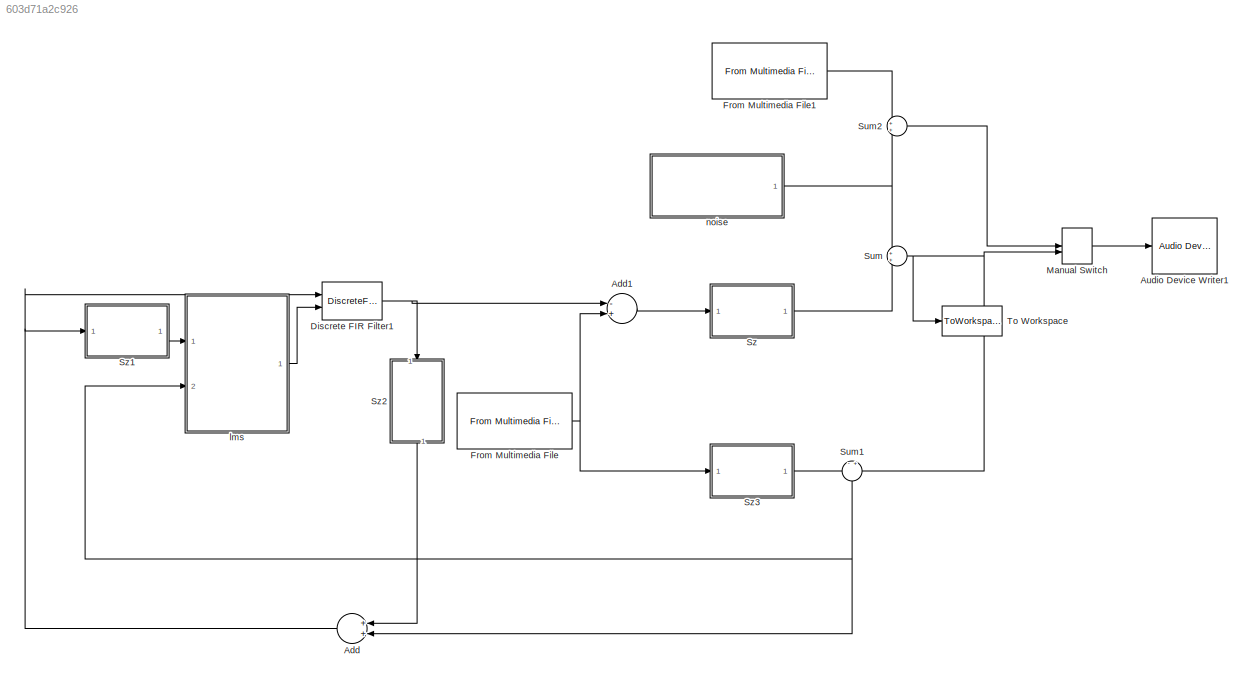
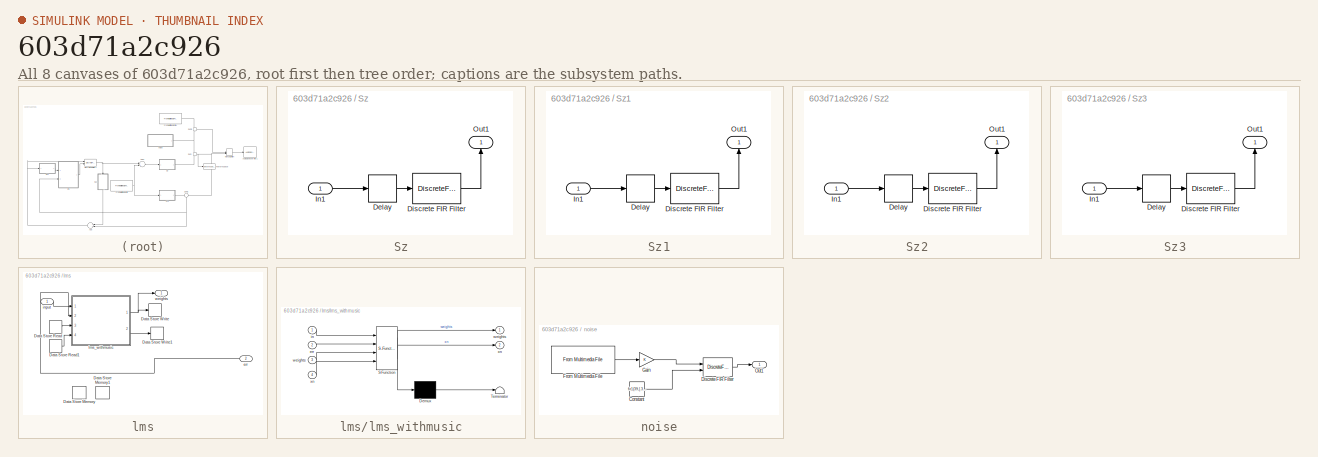
[diagram: thumbnail index - all 8 canvases of the model, root first then tree order]
MODEL slx_603d71a2c926
KIND model
CONFIG AbsTol = auto
CONFIG EnableMultiTasking = off
CONFIG FixedStep = auto
CONFIG MaxStep = auto
CONFIG MinStep = auto
CONFIG RelTol = 1e-3
CONFIG SampleTimeConstraint = Unconstrained
CONFIG Solver = VariableStepAuto
CONFIG SolverName = VariableStepAuto
CONFIG StartTime = 0.0
CONFIG StopTime = inf
BLOCK [Sum] Add
  InputSameDT = off
  OutDataTypeStr = Inherit: Inherit via internal rule
  Ports = [2, 1]
  SaturateOnIntegerOverflow = off
BLOCK [Sum] Add1
  InputSameDT = off
  Inputs = -+
  OutDataTypeStr = Inherit: Inherit via internal rule
  Ports = [2, 1]
  SaturateOnIntegerOverflow = off
BLOCK [Reference] Audio Device Writer1  REF=dspsnks4/Audio Device
Writer
  Ports = [1]
  SourceBlock = dspsnks4/Audio Device\nWriter
  SourceType = Audio Device Writer
BLOCK [DiscreteFir] Discrete FIR Filter1
  CoefSource = Input port
  Coefficients = [0.5 0.5 0.3 0.3]
  InputPortMap = u0,u1
  OutputPortMap = o0
  Ports = [2, 1]
BLOCK [Reference] From Multimedia File  REF=dspvision/From Multimedia File
  Ports = [0, 1]
  SourceBlock = dspvision/From Multimedia File
  SourceType = From Multimedia File
BLOCK [Reference] From Multimedia File1  REF=dspvision/From Multimedia File
  Ports = [0, 1]
  SourceBlock = dspvision/From Multimedia File
  SourceType = From Multimedia File
BLOCK [ManualSwitch] Manual Switch
BLOCK [Sum] Sum
  IconShape = round
  InputSameDT = off
  OutDataTypeStr = Inherit: Inherit via internal rule
  Ports = [2, 1]
  SaturateOnIntegerOverflow = off
BLOCK [Sum] Sum1
  IconShape = round
  InputSameDT = off
  Inputs = -+
  OutDataTypeStr = Inherit: Inherit via internal rule
  Ports = [2, 1]
  SaturateOnIntegerOverflow = off
BLOCK [Sum] Sum2
  IconShape = round
  InputSameDT = off
  OutDataTypeStr = Inherit: Inherit via internal rule
  Ports = [2, 1]
  SaturateOnIntegerOverflow = off
BLOCK [SubSystem] Sz
  Ports = [1, 1]
  RequestExecContextInheritance = off
  Variant = off
BLOCK [Delay] Sz/Delay
  DelayLength = 1
  InitialCondition = 0
  InputPortMap = u0
  Ports = [1, 1]
BLOCK [DiscreteFir] Sz/Discrete FIR Filter
  Coefficients = [0.5 0.5 0.3 0.3]
  InputPortMap = u0
  OutputPortMap = o0
  Ports = [1, 1]
BLOCK [Inport] Sz/In1
  IconDisplay = Port number
BLOCK [Outport] Sz/Out1
  IconDisplay = Port number
BLOCK [SubSystem] Sz1
  Ports = [1, 1]
  RequestExecContextInheritance = off
  Variant = off
BLOCK [Delay] Sz1/Delay
  DelayLength = 1
  InitialCondition = 0
  InputPortMap = u0
  Ports = [1, 1]
BLOCK [DiscreteFir] Sz1/Discrete FIR Filter
  Coefficients = [0.5 0.5 0.3 0.3]
  InputPortMap = u0
  OutputPortMap = o0
  Ports = [1, 1]
BLOCK [Inport] Sz1/In1
  IconDisplay = Port number
BLOCK [Outport] Sz1/Out1
  IconDisplay = Port number
BLOCK [SubSystem] Sz2
  Ports = [1, 1]
  RequestExecContextInheritance = off
  Variant = off
BLOCK [Delay] Sz2/Delay
  DelayLength = 1
  InitialCondition = 0
  InputPortMap = u0
  Ports = [1, 1]
BLOCK [DiscreteFir] Sz2/Discrete FIR Filter
  Coefficients = [0.5 0.5 0.3 0.3]
  InputPortMap = u0
  OutputPortMap = o0
  Ports = [1, 1]
BLOCK [Inport] Sz2/In1
  IconDisplay = Port number
BLOCK [Outport] Sz2/Out1
  IconDisplay = Port number
BLOCK [SubSystem] Sz3
  Ports = [1, 1]
  RequestExecContextInheritance = off
  Variant = off
BLOCK [Delay] Sz3/Delay
  DelayLength = 1
  InitialCondition = 0
  InputPortMap = u0
  Ports = [1, 1]
BLOCK [DiscreteFir] Sz3/Discrete FIR Filter
  Coefficients = [0.5 0.5 0.3 0.3]
  InputPortMap = u0
  OutputPortMap = o0
  Ports = [1, 1]
BLOCK [Inport] Sz3/In1
  IconDisplay = Port number
BLOCK [Outport] Sz3/Out1
  IconDisplay = Port number
BLOCK [ToWorkspace] To Workspace
  FixptAsFi = on
  MaxDataPoints = inf
  Ports = [1]
  SampleTime = -1
  Save2DSignal = 3-D array (concatenate along third dimension)
  SaveFormat = Timeseries
  VariableName = simout
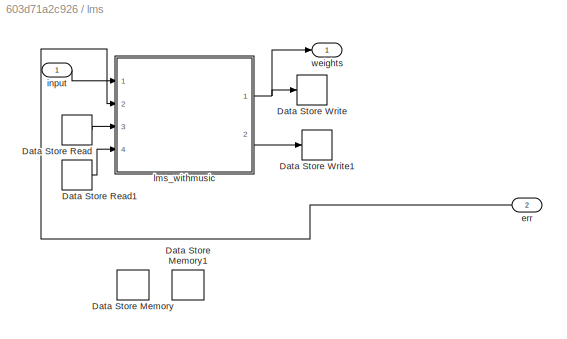
BLOCK [SubSystem] lms
  Ports = [2, 1]
  RequestExecContextInheritance = off
  Variant = off
BLOCK [DataStoreMemory] lms/Data Store Memory
  DataStoreName = weights
  Dimensions = 256
  ReadBeforeWriteMsg = warning
  ShowAdditionalParam = off
  WriteAfterReadMsg = warning
  WriteAfterWriteMsg = warning
BLOCK [DataStoreMemory] lms/Data Store Memory1
  DataStoreName = xn
  Dimensions = 256
  ReadBeforeWriteMsg = warning
  ShowAdditionalParam = off
  WriteAfterReadMsg = warning
  WriteAfterWriteMsg = warning
BLOCK [DataStoreRead] lms/Data Store Read
  DataStoreName = weights
  Ports = [0, 1]
BLOCK [DataStoreRead] lms/Data Store Read1
  DataStoreName = xn
  Ports = [0, 1]
BLOCK [DataStoreWrite] lms/Data Store Write
  DataStoreName = weights
  Ports = [1]
BLOCK [DataStoreWrite] lms/Data Store Write1
  DataStoreName = xn
  Ports = [1]
BLOCK [Inport] lms/err
  IconDisplay = Port number
  Port = 2
BLOCK [Inport] lms/input 
  IconDisplay = Port number
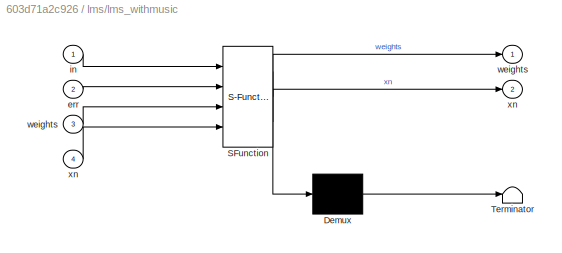
BLOCK [SubSystem] lms/lms_withmusic
  ErrorFcn = Stateflow.Translate.translate
  PermitHierarchicalResolution = ExplicitOnly
  Ports = [4, 2]
  RequestExecContextInheritance = off
  SFBlockType = MATLAB Function
  TreatAsAtomicUnit = on
  Variant = off
BLOCK [Demux] lms/lms_withmusic/ Demux 
  Outputs = 1
  Ports = [1, 1]
BLOCK [S-Function] lms/lms_withmusic/ SFunction 
  EnableBusSupport = on
  FunctionName = sf_sfun
  PortCounts = [4 3]
  Ports = [4, 3]
  SFcnIsStateOwnerBlock = off
  SFunctionDeploymentMode = off
  Tag = Stateflow S-Function feedback_withmusic 2
BLOCK [Terminator] lms/lms_withmusic/ Terminator 
BLOCK [Inport] lms/lms_withmusic/err
  IconDisplay = Port number
  Port = 2
BLOCK [Inport] lms/lms_withmusic/in
  IconDisplay = Port number
BLOCK [Outport] lms/lms_withmusic/weights
  IconDisplay = Port number
BLOCK [Inport] lms/lms_withmusic/weights 
  IconDisplay = Port number
  Port = 3
BLOCK [Outport] lms/lms_withmusic/xn
  IconDisplay = Port number
  Port = 2
BLOCK [Inport] lms/lms_withmusic/xn 
  IconDisplay = Port number
  Port = 4
BLOCK [Outport] lms/weights 
  IconDisplay = Port number
BLOCK [SubSystem] noise
  Ports = [0, 1]
  RequestExecContextInheritance = off
  Variant = off
BLOCK [Constant] noise/Constant
  Value = fir1(39,[.3 .5])
BLOCK [DiscreteFir] noise/Discrete FIR Filter
  CoefSource = Input port
  InputPortMap = u0,u1
  OutputPortMap = o0
  Ports = [2, 1]
BLOCK [Reference] noise/From Multimedia File  REF=dspvision/From Multimedia File
  Ports = [0, 1]
  SourceBlock = dspvision/From Multimedia File
  SourceType = From Multimedia File
BLOCK [Gain] noise/Gain
  OutDataTypeStr = Inherit: Inherit via internal rule
  ParamDataTypeStr = Inherit: Inherit via internal rule
  SaturateOnIntegerOverflow = off
BLOCK [Outport] noise/Out1
  IconDisplay = Port number
LINE Add1:1 -> Sz:1
NET Add:1 -> Discrete FIR Filter1:1, Sz1:1
NET Discrete FIR Filter1:1 -> Add1:1, Sz2:1
LINE From Multimedia File1:1 -> Sum2:1
NET From Multimedia File:1 -> Add1:2, Sz3:1
LINE Manual Switch:1 -> Audio Device Writer1:1
NET Sum1:1 -> Add:2, lms:2
LINE Sum2:1 -> Manual Switch:1
NET Sum:1 -> Manual Switch:2, Sum1:2, To Workspace:1
LINE Sz/Delay:1 -> Sz/Discrete FIR Filter:1
LINE Sz/Discrete FIR Filter:1 -> Sz/Out1:1
LINE Sz/In1:1 -> Sz/Delay:1
LINE Sz1/Delay:1 -> Sz1/Discrete FIR Filter:1
LINE Sz1/Discrete FIR Filter:1 -> Sz1/Out1:1
LINE Sz1/In1:1 -> Sz1/Delay:1
LINE Sz1:1 -> lms:1
LINE Sz2/Delay:1 -> Sz2/Discrete FIR Filter:1
LINE Sz2/Discrete FIR Filter:1 -> Sz2/Out1:1
LINE Sz2/In1:1 -> Sz2/Delay:1
LINE Sz2:1 -> Add:1
LINE Sz3/Delay:1 -> Sz3/Discrete FIR Filter:1
LINE Sz3/Discrete FIR Filter:1 -> Sz3/Out1:1
LINE Sz3/In1:1 -> Sz3/Delay:1
LINE Sz3:1 -> Sum1:1
LINE Sz:1 -> Sum:2
LINE lms/Data Store Read1:1 -> lms/lms_withmusic:4
LINE lms/Data Store Read:1 -> lms/lms_withmusic:3
LINE lms/err:1 -> lms/lms_withmusic:2
LINE lms/input :1 -> lms/lms_withmusic:1
NET lms/lms_withmusic:1 -> lms/Data Store Write:1, lms/weights :1
LINE lms/lms_withmusic:2 -> lms/Data Store Write1:1
LINE lms:1 -> Discrete FIR Filter1:2
LINE noise/Constant:1 -> noise/Discrete FIR Filter:2
LINE noise/Discrete FIR Filter:1 -> noise/Out1:1
LINE noise/From Multimedia File:1 -> noise/Gain:1
LINE noise/Gain:1 -> noise/Discrete FIR Filter:1
NET noise:1 -> Sum2:2, Sum:1
note: NET lines group one-source signal fan-out (src -> all destinations, sorted); 1:1 wires keep LINE
CHART lms/lms_withmusic states=1 transitions=1
  STATE_LABEL 'eML_blk_kernel()'
  STATE_LABEL 'SCRIPT:\nfunction [weights,xn] = func_withmu(in,err,weights,xn)\n    testing = in;\n    length = 256;\n    %mu = 0.1;\n    mu = 0.0001;\n    xn = [ sum(in); xn(1:length-1,1)];\n    weights = weights+ mu*xn*sum(err);\n    %weights = weights+ mu/norm(xn,2)*xn*sum(err);\nend'
